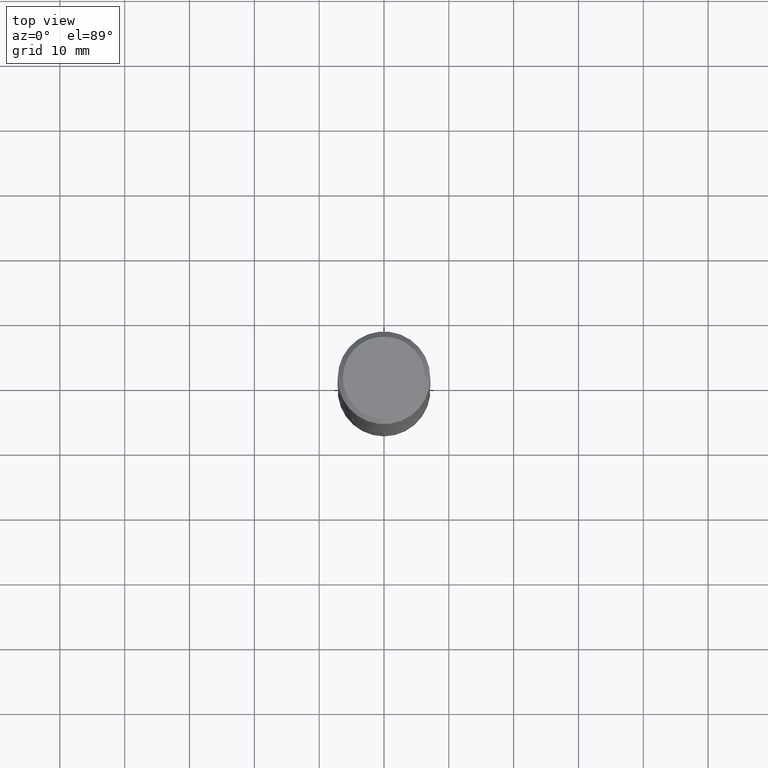
[diagram: clean part render]
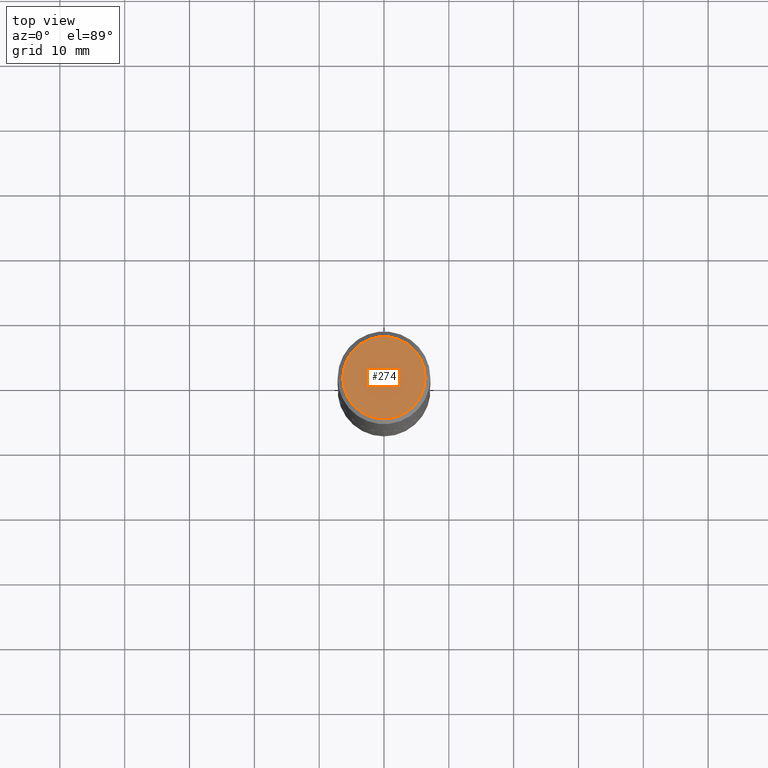
[diagram: same view with one face highlighted and labeled with its STEP entity id]
A machine part, top view. The second image highlights one B-rep face of the part: STEP entity #274.
In plain terms, the highlighted planar face has unit normal (0, -0, -1).
Its self-contained STEP definition (entity closure, byte-faithful):
#3 = ORIENTED_EDGE ( 'NONE', *, *, #385, .T. ) ;
#14 = CARTESIAN_POINT ( 'NONE',  ( -8.834764860432524555E-48, 1.261370276539608758E-33, 3.612708057484696673E-19 ) ) ;
#60 = CARTESIAN_POINT ( 'NONE',  ( -1.766952972086504911E-47, 2.522740553079217515E-33, 7.225416114969393346E-19 ) ) ;
#68 = DIRECTION ( 'NONE',  ( -2.445468806185136597E-29, 3.491481338843145583E-15, 1.000000000000000000 ) ) ;
#86 = VERTEX_POINT ( 'NONE', #129 ) ;
#89 = EDGE_CURVE ( 'NONE', #86, #233, #309, .T. ) ;
#99 = AXIS2_PLACEMENT_3D ( 'NONE', #299, #269, #146 ) ;
#105 = PLANE ( 'NONE',  #333 ) ;
#116 = CIRCLE ( 'NONE', #99, 0.2502499999999999725 ) ;
#129 = CARTESIAN_POINT ( 'NONE',  ( 0.2502499999999999725, -1.878589301076930179E-15, 7.225416115096182129E-19 ) ) ;
#132 = ORIENTED_EDGE ( 'NONE', *, *, #89, .T. ) ;
#142 = AXIS2_PLACEMENT_3D ( 'NONE', #60, #68, #277 ) ;
#146 = DIRECTION ( 'NONE',  ( 1.000000000000000000, -6.982962677686266711E-15, 4.876199892921953804E-29 ) ) ;
#230 = FACE_OUTER_BOUND ( 'NONE', #363, .T. ) ;
#233 = VERTEX_POINT ( 'NONE', #381 ) ;
#269 = DIRECTION ( 'NONE',  ( -2.445468806185136597E-29, 3.491481338843145583E-15, 1.000000000000000000 ) ) ;
#274 = ADVANCED_FACE ( 'NONE', ( #230 ), #105, .F. ) ;
#277 = DIRECTION ( 'NONE',  ( 1.000000000000000000, -6.982962677686266711E-15, 4.876199892921953804E-29 ) ) ;
#299 = CARTESIAN_POINT ( 'NONE',  ( -1.766952972086504911E-47, 2.522740553079217515E-33, 7.225416114969393346E-19 ) ) ;
#309 = CIRCLE ( 'NONE', #142, 0.2502499999999999725 ) ;
#323 = DIRECTION ( 'NONE',  ( 2.438088387897960049E-29, -3.491481338843145188E-15, -1.000000000000000000 ) ) ;
#333 = AXIS2_PLACEMENT_3D ( 'NONE', #14, #323, #350 ) ;
#350 = DIRECTION ( 'NONE',  ( -1.000000000000000000, 6.982962677686265922E-15, -4.876176775795935793E-29 ) ) ;
#363 = EDGE_LOOP ( 'NONE', ( #3, #132 ) ) ;
#381 = CARTESIAN_POINT ( 'NONE',  ( -0.2502499999999999725, 1.802040806010411548E-15, 7.225416114845277753E-19 ) ) ;
#385 = EDGE_CURVE ( 'NONE', #233, #86, #116, .T. ) ;